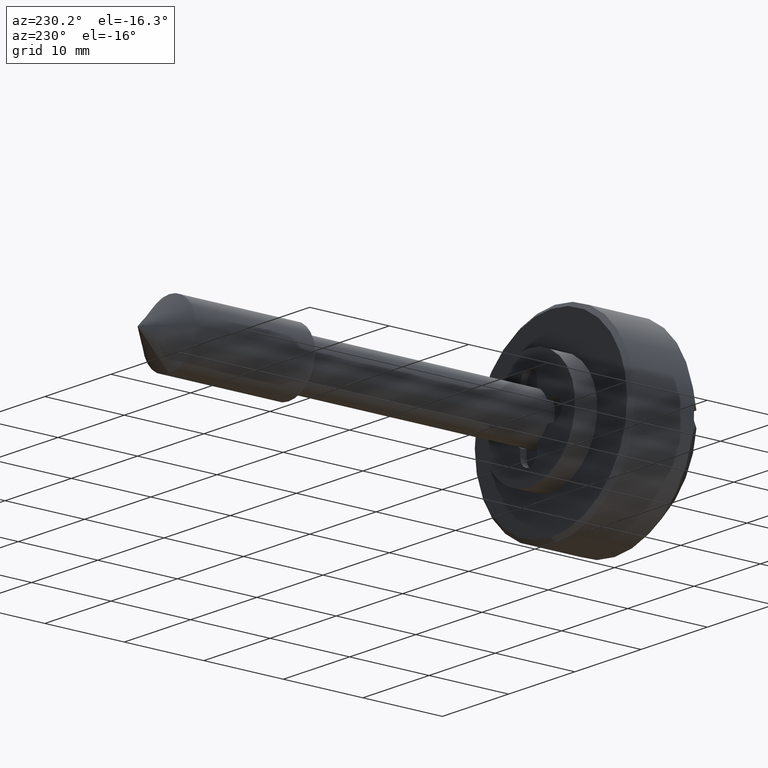
[diagram: clean part render]
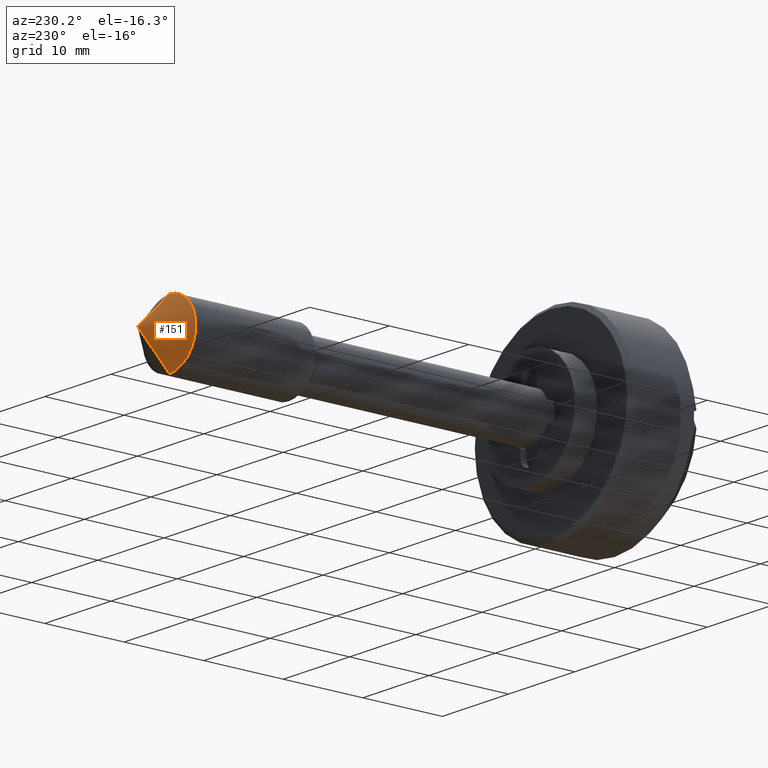
[diagram: same view with one face highlighted and labeled with its STEP entity id]
A machine part, auxiliary view. The second image highlights one B-rep face of the part: STEP entity #151.
In plain terms, the highlighted face is a freeform B-spline surface patch.
Its self-contained STEP definition (entity closure, byte-faithful):
#151=ADVANCED_FACE('',(#550),#549,.T.);
#549=( BOUNDED_SURFACE() B_SPLINE_SURFACE( 2,1,((#797,#798),(#799,#800),(#801,#802),(#803,#804),(#805,#806)), .UNSPECIFIED.,.F.,.F.,.F.) B_SPLINE_SURFACE_WITH_KNOTS((3,2,3),(2,2),(0.00000000000E+00,5.00000000000E-01,1.00000000000E+00),(0.00000000000E+00,1.00000000000E+00), .UNSPECIFIED. ) GEOMETRIC_REPRESENTATION_ITEM() RATIONAL_B_SPLINE_SURFACE(((1.00000000000E+00,1.00000000000E+00),(7.07106781187E-01,7.07106781187E-01),(1.00000000000E+00,1.00000000000E+00),(7.07106781187E-01,7.07106781187E-01),(1.00000000000E+00,1.00000000000E+00))) REPRESENTATION_ITEM('') SURFACE() );
#550=FACE_OUTER_BOUND('',#807,.T.);
#797=CARTESIAN_POINT('',(5.00000000000E+01,0.00000000000E+00,0.00000000000E+00));
#798=CARTESIAN_POINT('',(4.60000000000E+01,4.89858719659E-16,4.00000000000E+00));
#799=CARTESIAN_POINT('',(5.00000000000E+01,0.00000000000E+00,0.00000000000E+00));
#800=CARTESIAN_POINT('',(4.60000000000E+01,4.00000000000E+00,4.00000000000E+00));
#801=CARTESIAN_POINT('',(5.00000000000E+01,0.00000000000E+00,0.00000000000E+00));
#802=CARTESIAN_POINT('',(4.60000000000E+01,4.00000000000E+00,-2.44929359829E-16));
#803=CARTESIAN_POINT('',(5.00000000000E+01,0.00000000000E+00,0.00000000000E+00));
#804=CARTESIAN_POINT('',(4.60000000000E+01,4.00000000000E+00,-4.00000000000E+00));
#805=CARTESIAN_POINT('',(5.00000000000E+01,0.00000000000E+00,0.00000000000E+00));
#806=CARTESIAN_POINT('',(4.60000000000E+01,0.00000000000E+00,-4.00000000000E+00));
#807=EDGE_LOOP('',(#1011,#1012,#1013));
#1011=ORIENTED_EDGE('',*,*,#1126,.T.);
#1012=ORIENTED_EDGE('',*,*,#1122,.F.);
#1013=ORIENTED_EDGE('',*,*,#1127,.F.);
#1122=EDGE_CURVE('',#1744,#1745,#1746,.T.);
#1126=EDGE_CURVE('',#1770,#1745,#1771,.T.);
#1127=EDGE_CURVE('',#1770,#1744,#1777,.T.);
#1744=VERTEX_POINT('',#2169);
#1745=VERTEX_POINT('',#2170);
#1746=CIRCLE('',#2174,4.00000000000E+00);
#1770=VERTEX_POINT('',#2183);
#1771=(BOUNDED_CURVE() B_SPLINE_CURVE(1,(#2184,#2185),.UNSPECIFIED.,.F.,.F.) B_SPLINE_CURVE_WITH_KNOTS((2,2),(0.00000000000E+00,1.00000000000E+00),.UNSPECIFIED.) CURVE() GEOMETRIC_REPRESENTATION_ITEM() RATIONAL_B_SPLINE_CURVE((1.00000000000E+00,1.00000000000E+00)) REPRESENTATION_ITEM('') );
#1777=(BOUNDED_CURVE() B_SPLINE_CURVE(1,(#2186,#2187),.UNSPECIFIED.,.F.,.F.) B_SPLINE_CURVE_WITH_KNOTS((2,2),(0.00000000000E+00,1.00000000000E+00),.UNSPECIFIED.) CURVE() GEOMETRIC_REPRESENTATION_ITEM() RATIONAL_B_SPLINE_CURVE((7.50000000000E-01,7.50000000000E-01)) REPRESENTATION_ITEM('') );
#2169=CARTESIAN_POINT('',(4.60000000000E+01,0.00000000000E+00,4.00000000000E+00));
#2170=CARTESIAN_POINT('',(4.60000000000E+01,4.44089209850E-16,-4.00000000000E+00));
#2171=CARTESIAN_POINT('',(4.60000000000E+01,0.00000000000E+00,0.00000000000E+00));
#2172=DIRECTION('',(-1.00000000000E+00,0.00000000000E+00,0.00000000000E+00));
#2173=DIRECTION('',(0.00000000000E+00,-1.22460635382E-16,1.00000000000E+00));
#2174=AXIS2_PLACEMENT_3D('',#2171,#2172,#2173);
#2183=CARTESIAN_POINT('',(5.00000000000E+01,0.00000000000E+00,0.00000000000E+00));
#2184=CARTESIAN_POINT('',(5.00000000000E+01,0.00000000000E+00,0.00000000000E+00));
#2185=CARTESIAN_POINT('',(4.60000000000E+01,-9.79717439318E-16,-4.00000000000E+00));
#2186=CARTESIAN_POINT('',(5.00000000000E+01,0.00000000000E+00,0.00000000000E+00));
#2187=CARTESIAN_POINT('',(4.60000000000E+01,1.03620815632E-15,4.00000000000E+00));